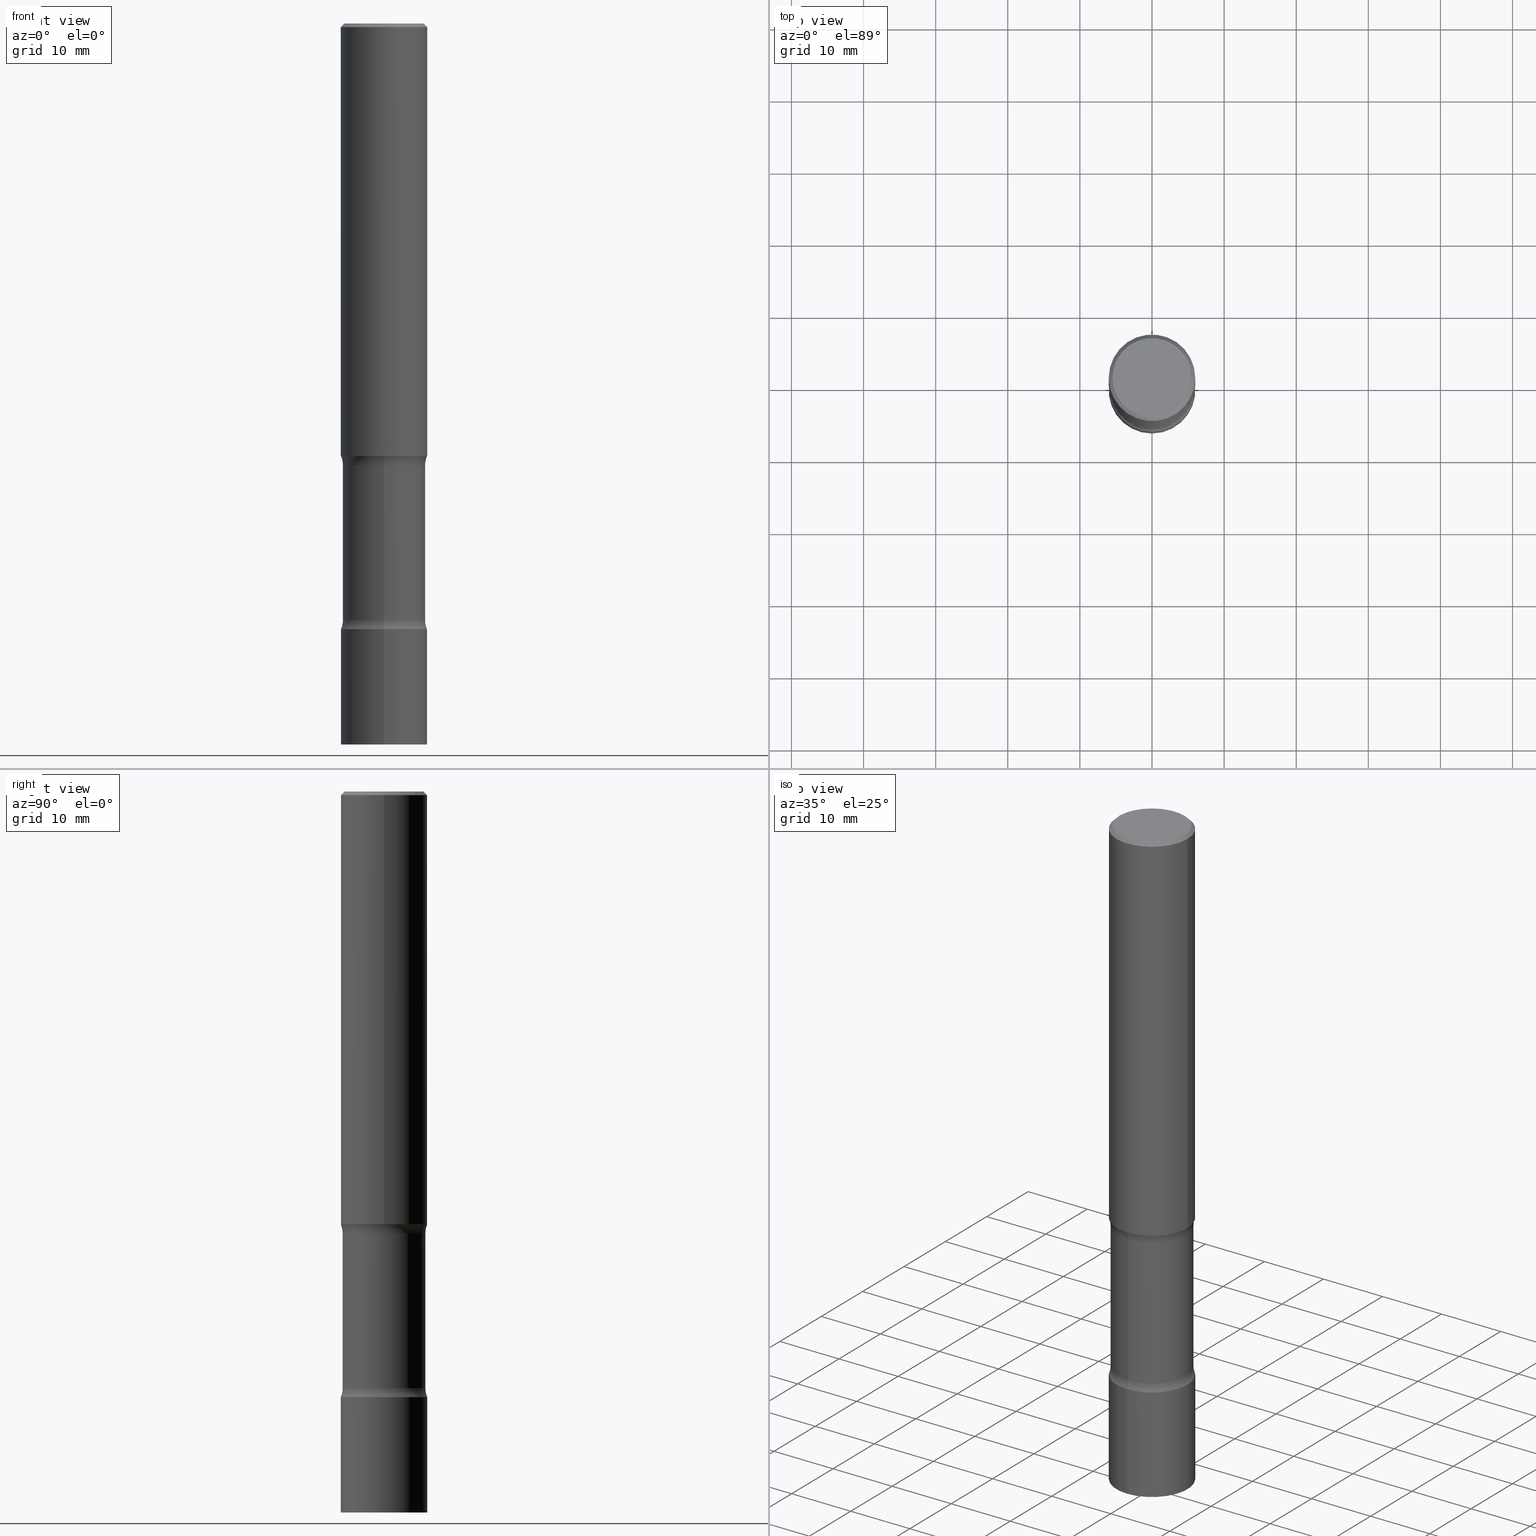
[diagram: canonical four-view strip — front | top / right | iso, engineering-drawing reading convention]
A machine part, canonical four-view strip (front | top / right | iso — engineering-drawing reading convention). The complete STEP part file that produces these views, byte-faithful:
ISO-10303-21;
HEADER;
FILE_DESCRIPTION (( 'STEP AP203' ),
    '1' );
FILE_NAME ('42709.STEP',
    '2024-03-11T13:32:30',
    ( '' ),
    ( '' ),
    'SwSTEP 2.0',
    'SolidWorks 2023',
    '' );
FILE_SCHEMA (( 'CONFIG_CONTROL_DESIGN' ));
ENDSEC;

DATA;
#1 = CARTESIAN_POINT ( 'NONE',  ( 7.966181769532970501E-29, -1.137359630996297633E-14, -3.257527452153435199 ) ) ;
#2 = DIRECTION ( 'NONE',  ( -6.982962677686265922E-15, -1.000000000000000000, 4.626330217890370914E-15 ) ) ;
#3 = EDGE_CURVE ( 'NONE', #478, #437, #290, .T. ) ;
#4 = CARTESIAN_POINT ( 'NONE',  ( 8.087666740795951310E-29, -1.154631010920399245E-14, -3.307100000000000151 ) ) ;
#5 = EDGE_CURVE ( 'NONE', #478, #52, #31, .T. ) ;
#6 = CLOSED_SHELL ( 'NONE', ( #213, #429, #136, #441 ) ) ;
#7 =( GEOMETRIC_REPRESENTATION_CONTEXT ( 3 ) GLOBAL_UNCERTAINTY_ASSIGNED_CONTEXT ( ( #302 ) ) GLOBAL_UNIT_ASSIGNED_CONTEXT ( ( #498, #449, #98 ) ) REPRESENTATION_CONTEXT ( 'NONE', 'WORKASPACE' ) );
#8 = ORIENTED_EDGE ( 'NONE', *, *, #179, .T. ) ;
#9 = EDGE_CURVE ( 'NONE', #437, #17, #140, .T. ) ;
#10 = EDGE_CURVE ( 'NONE', #253, #221, #82, .T. ) ;
#11 = CARTESIAN_POINT ( 'NONE',  ( 5.776686413970529753E-29, -8.247577218615278049E-15, -2.362199999999999633 ) ) ;
#12 = AXIS2_PLACEMENT_3D ( 'NONE', #164, #93, #316 ) ;
#13 = ORIENTED_EDGE ( 'NONE', *, *, #3, .T. ) ;
#14 = CC_DESIGN_SECURITY_CLASSIFICATION ( #178, ( #348 ) ) ;
#15 = DIRECTION ( 'NONE',  ( -2.445468806185136597E-29, 3.491481338843145583E-15, 1.000000000000000000 ) ) ;
#16 = EDGE_CURVE ( 'NONE', #502, #197, #209, .T. ) ;
#17 = VERTEX_POINT ( 'NONE', #22 ) ;
#18 = ORIENTED_EDGE ( 'NONE', *, *, #16, .F. ) ;
#19 = CARTESIAN_POINT ( 'NONE',  ( 8.087666740795951310E-29, -1.154631010920399245E-14, -3.307100000000000151 ) ) ;
#20 = CIRCLE ( 'NONE', #75, 0.2259500000000001785 ) ;
#21 = CARTESIAN_POINT ( 'NONE',  ( 0.2161999999999996980, -1.586759460484350016E-15, 4.268512490111238857E-18 ) ) ;
#22 = CARTESIAN_POINT ( 'NONE',  ( -1.620449627073580844E-15, -0.2362000000000086253, -2.362199999999998745 ) ) ;
#23 = DIRECTION ( 'NONE',  ( 1.000000000000000000, 0.000000000000000000, 0.000000000000000000 ) ) ;
#24 = PERSON ( 'UNSPECIFIED', 'UNSPECIFIED', 'UNSPECIFIED', ('UNSPECIFIED'), ('UNSPECIFIED'), ('UNSPECIFIED') ) ;
#25 = EDGE_CURVE ( 'NONE', #52, #294, #395, .T. ) ;
#26 = DIRECTION ( 'NONE',  ( 1.000000000000000000, -6.982962677686266711E-15, 4.876217060660162401E-29 ) ) ;
#27 = ADVANCED_FACE ( 'NONE', ( #267 ), #132, .F. ) ;
#28 = EDGE_LOOP ( 'NONE', ( #141, #318 ) ) ;
#29 = PERSON_AND_ORGANIZATION_ROLE ( 'creator' ) ;
#30 = DIRECTION ( 'NONE',  ( -2.445546472981146921E-29, 3.491370115570739041E-15, 1.000000000000000000 ) ) ;
#31 = LINE ( 'NONE', #453, #351 ) ;
#32 = FACE_OUTER_BOUND ( 'NONE', #28, .T. ) ;
#33 = CARTESIAN_POINT ( 'NONE',  ( 5.635572785636282470E-29, -8.449659966078857347E-15, -2.362199999999999633 ) ) ;
#34 = EDGE_CURVE ( 'NONE', #17, #437, #149, .T. ) ;
#35 = DATE_TIME_ROLE ( 'classification_date' ) ;
#36 = DIRECTION ( 'NONE',  ( -1.000000000000000000, 6.982962677686265922E-15, -4.876176775795935793E-29 ) ) ;
#37 = CARTESIAN_POINT ( 'NONE',  ( -1.585289574835001111E-15, -0.2259500000000087272, -2.411772547846564585 ) ) ;
#38 = DATE_AND_TIME ( #42, #391 ) ;
#39 = EDGE_CURVE ( 'NONE', #190, #227, #426, .T. ) ;
#40 = DIRECTION ( 'NONE',  ( 6.982962677686265922E-15, 1.000000000000000000, -2.418099573944909253E-15 ) ) ;
#41 = DIRECTION ( 'NONE',  ( 1.000000000000000000, -6.860497997771530774E-15, 4.843422759901110314E-29 ) ) ;
#42 = CALENDAR_DATE ( 2024, 11, 3 ) ;
#43 = CYLINDRICAL_SURFACE ( 'NONE', #369, 0.2361999999999999378 ) ;
#44 = CIRCLE ( 'NONE', #216, 0.2361999999999999378 ) ;
#45 = VECTOR ( 'NONE', #228, 39.37007874015748854 ) ;
#46 = DIRECTION ( 'NONE',  ( 2.595083030119239242E-29, -3.277225254656718769E-15, -1.000000000000000000 ) ) ;
#47 = PERSON_AND_ORGANIZATION ( #24, #87 ) ;
#48 = DIRECTION ( 'NONE',  ( -2.445546472981147201E-29, 3.491370115570739041E-15, 1.000000000000000000 ) ) ;
#49 = EDGE_CURVE ( 'NONE', #63, #478, #186, .T. ) ;
#50 = AXIS2_PLACEMENT_3D ( 'NONE', #11, #15, #476 ) ;
#51 = ADVANCED_BREP_SHAPE_REPRESENTATION ( '42709', ( #280, #279, #114, #116 ), #7 ) ;
#52 = VERTEX_POINT ( 'NONE', #470 ) ;
#53 = FACE_OUTER_BOUND ( 'NONE', #319, .T. ) ;
#54 = CC_DESIGN_DATE_AND_TIME_ASSIGNMENT ( #454, #289, ( #394 ) ) ;
#55 = ORIENTED_EDGE ( 'NONE', *, *, #165, .F. ) ;
#56 = DIRECTION ( 'NONE',  ( -2.445468806185136597E-29, 3.491481338843145583E-15, 1.000000000000000000 ) ) ;
#57 = AXIS2_PLACEMENT_3D ( 'NONE', #383, #418, #154 ) ;
#58 = EDGE_LOOP ( 'NONE', ( #328, #148 ) ) ;
#59 = ORIENTED_EDGE ( 'NONE', *, *, #150, .T. ) ;
#60 = PERSON_AND_ORGANIZATION ( #24, #87 ) ;
#61 = ORIENTED_EDGE ( 'NONE', *, *, #421, .T. ) ;
#62 = APPLICATION_PROTOCOL_DEFINITION ( 'international standard', 'config_control_design', 1994, #130 ) ;
#63 = VERTEX_POINT ( 'NONE', #37 ) ;
#64 = AXIS2_PLACEMENT_3D ( 'NONE', #422, #462, #341 ) ;
#65 = DIRECTION ( 'NONE',  ( -6.982962677686265922E-15, -1.000000000000000000, 4.626330217890370914E-15 ) ) ;
#66 = LOCAL_TIME ( 9, 32, 30.00000000000000000, #487 ) ;
#67 = ADVANCED_FACE ( 'NONE', ( #118 ), #467, .F. ) ;
#68 = DIRECTION ( 'NONE',  ( -1.000000000000000000, 6.982962677686266711E-15, 0.000000000000000000 ) ) ;
#69 = ORIENTED_EDGE ( 'NONE', *, *, #99, .T. ) ;
#70 = CARTESIAN_POINT ( 'NONE',  ( -0.2361999999999997157, 1.579546157692631255E-15, -0.02000000000000005246 ) ) ;
#71 = ORIENTED_EDGE ( 'NONE', *, *, #145, .F. ) ;
#72 = CYLINDRICAL_SURFACE ( 'NONE', #94, 0.2361999999999999378 ) ;
#73 = EDGE_CURVE ( 'NONE', #109, #284, #44, .T. ) ;
#74 = AXIS2_PLACEMENT_3D ( 'NONE', #100, #225, #378 ) ;
#75 = AXIS2_PLACEMENT_3D ( 'NONE', #120, #123, #399 ) ;
#76 = DIRECTION ( 'NONE',  ( -2.595083030119238121E-29, 3.277225254656719163E-15, 1.000000000000000000 ) ) ;
#77 = CC_DESIGN_PERSON_AND_ORGANIZATION_ASSIGNMENT ( #60, #185, ( #348 ) ) ;
#78 = PLANE ( 'NONE',  #396 ) ;
#79 = DIRECTION ( 'NONE',  ( -2.445468806185136877E-29, 3.491481338843145188E-15, 1.000000000000000000 ) ) ;
#80 = DIRECTION ( 'NONE',  ( -2.445468806185136597E-29, 3.491481338843145583E-15, 1.000000000000000000 ) ) ;
#81 = DIRECTION ( 'NONE',  ( -2.445468806185136597E-29, 3.491481338843145583E-15, 1.000000000000000000 ) ) ;
#82 = CIRCLE ( 'NONE', #346, 0.2361999999999999378 ) ;
#83 = CARTESIAN_POINT ( 'NONE',  ( 5.776686413970529753E-29, -8.247577218615278049E-15, -2.362199999999999633 ) ) ;
#84 = AXIS2_PLACEMENT_3D ( 'NONE', #192, #495, #68 ) ;
#85 = EDGE_CURVE ( 'NONE', #253, #52, #388, .T. ) ;
#86 = EDGE_CURVE ( 'NONE', #63, #294, #432, .T. ) ;
#87 = ORGANIZATION ( 'UNSPECIFIED', 'UNSPECIFIED', '' ) ;
#88 = APPROVAL_PERSON_ORGANIZATION ( #446, #472, #258 ) ;
#89 = ORIENTED_EDGE ( 'NONE', *, *, #179, .F. ) ;
#90 = FACE_OUTER_BOUND ( 'NONE', #58, .T. ) ;
#91 = CARTESIAN_POINT ( 'NONE',  ( 0.000000000000000000, 0.000000000000000000, 0.000000000000000000 ) ) ;
#92 = ORIENTED_EDGE ( 'NONE', *, *, #5, .F. ) ;
#93 = DIRECTION ( 'NONE',  ( -2.438088387897960049E-29, 3.491481338843145188E-15, 1.000000000000000000 ) ) ;
#94 = AXIS2_PLACEMENT_3D ( 'NONE', #423, #230, #379 ) ;
#95 = ORIENTED_EDGE ( 'NONE', *, *, #468, .F. ) ;
#96 = CALENDAR_DATE ( 2024, 11, 3 ) ;
#97 = ORIENTED_EDGE ( 'NONE', *, *, #127, .T. ) ;
#98 =( NAMED_UNIT ( * ) SI_UNIT ( $, .STERADIAN. ) SOLID_ANGLE_UNIT ( ) );
#99 = EDGE_CURVE ( 'NONE', #63, #17, #176, .T. ) ;
#100 = CARTESIAN_POINT ( 'NONE',  ( 2.450670751734053438E-15, 0.3509499999999914910, -2.411772547846566361 ) ) ;
#101 = CARTESIAN_POINT ( 'NONE',  ( 4.890937612370285420E-31, -6.982962677686308865E-17, -0.02000000000000005246 ) ) ;
#102 = CARTESIAN_POINT ( 'NONE',  ( 1.678301941865355803E-15, 0.2361999999999999378, -8.246616212978083012E-16 ) ) ;
#103 = CARTESIAN_POINT ( 'NONE',  ( 5.635572785636282470E-29, -8.449659966078857347E-15, -2.362199999999999633 ) ) ;
#104 = PERSON_AND_ORGANIZATION_ROLE ( 'creator' ) ;
#105 = AXIS2_PLACEMENT_3D ( 'NONE', #376, #466, #503 ) ;
#106 = PLANE ( 'NONE',  #126 ) ;
#107 = EDGE_LOOP ( 'NONE', ( #219, #200, #138, #89 ) ) ;
#108 = DIRECTION ( 'NONE',  ( 6.982962677686265922E-15, 1.000000000000000000, -3.627149360917364668E-15 ) ) ;
#109 = VERTEX_POINT ( 'NONE', #277 ) ;
#110 = COORDINATED_UNIVERSAL_TIME_OFFSET ( 5, 0, .BEHIND. ) ;
#111 = FACE_OUTER_BOUND ( 'NONE', #307, .T. ) ;
#112 = DIRECTION ( 'NONE',  ( 2.595083030119239242E-29, -3.277225254656718769E-15, -1.000000000000000000 ) ) ;
#113 = DATE_AND_TIME ( #169, #232 ) ;
#114 = MANIFOLD_SOLID_BREP ( 'Body-Move/Copy2[4]', #252 ) ;
#115 = CLOSED_SHELL ( 'NONE', ( #352, #377, #242, #255, #430, #122 ) ) ;
#116 = AXIS2_PLACEMENT_3D ( 'NONE', #335, #459, #23 ) ;
#117 = DIRECTION ( 'NONE',  ( 2.438088387897960049E-29, -3.491481338843145188E-15, -1.000000000000000000 ) ) ;
#118 = FACE_OUTER_BOUND ( 'NONE', #491, .T. ) ;
#119 = DIMENSIONAL_EXPONENTS ( 1.000000000000000000, 0.000000000000000000, 0.000000000000000000, 0.000000000000000000, 0.000000000000000000, 0.000000000000000000, 0.000000000000000000 ) ;
#120 = CARTESIAN_POINT ( 'NONE',  ( 7.959021863119556316E-29, -1.138384970346355123E-14, -3.257527452153435199 ) ) ;
#121 = FACE_OUTER_BOUND ( 'NONE', #409, .T. ) ;
#122 = ADVANCED_FACE ( 'NONE', ( #121 ), #473, .T. ) ;
#123 = DIRECTION ( 'NONE',  ( 2.595083030119239242E-29, -3.277225254656718769E-15, -1.000000000000000000 ) ) ;
#124 = CC_DESIGN_PERSON_AND_ORGANIZATION_ASSIGNMENT ( #367, #29, ( #394 ) ) ;
#125 = AXIS2_PLACEMENT_3D ( 'NONE', #157, #196, #201 ) ;
#126 = AXIS2_PLACEMENT_3D ( 'NONE', #199, #76, #272 ) ;
#127 = EDGE_CURVE ( 'NONE', #173, #227, #337, .T. ) ;
#128 = CC_DESIGN_PERSON_AND_ORGANIZATION_ASSIGNMENT ( #410, #152, ( #168 ) ) ;
#129 = EDGE_LOOP ( 'NONE', ( #440, #357, #488, #419 ) ) ;
#130 = APPLICATION_CONTEXT ( 'configuration controlled 3d designs of mechanical parts and assemblies' ) ;
#131 = FACE_OUTER_BOUND ( 'NONE', #129, .T. ) ;
#132 = TOROIDAL_SURFACE ( 'NONE', #480, 0.3509499999999999842, 0.1249999999999999029 ) ;
#133 = EDGE_LOOP ( 'NONE', ( #416, #69, #286, #301 ) ) ;
#134 = CYLINDRICAL_SURFACE ( 'NONE', #338, 0.2259500000000001507 ) ;
#135 = ORIENTED_EDGE ( 'NONE', *, *, #479, .F. ) ;
#136 = ADVANCED_FACE ( 'NONE', ( #457 ), #266, .F. ) ;
#137 = DIRECTION ( 'NONE',  ( 6.982962677686265922E-15, 1.000000000000000000, -3.277225254656718769E-15 ) ) ;
#138 = ORIENTED_EDGE ( 'NONE', *, *, #421, .F. ) ;
#139 = COORDINATED_UNIVERSAL_TIME_OFFSET ( 5, 0, .BEHIND. ) ;
#140 = CIRCLE ( 'NONE', #358, 0.2362000000000001598 ) ;
#141 = ORIENTED_EDGE ( 'NONE', *, *, #10, .T. ) ;
#142 = DATE_AND_TIME ( #96, #153 ) ;
#143 = ORIENTED_EDGE ( 'NONE', *, *, #323, .F. ) ;
#144 = CARTESIAN_POINT ( 'NONE',  ( -1.620449627073554812E-15, -0.2362000000000115396, -3.307099999999999707 ) ) ;
#145 = EDGE_CURVE ( 'NONE', #325, #281, #360, .T. ) ;
#146 = DIRECTION ( 'NONE',  ( 6.982962677686267499E-15, 1.000000000000000000, -2.418099573944909253E-15 ) ) ;
#147 = LINE ( 'NONE', #333, #45 ) ;
#148 = ORIENTED_EDGE ( 'NONE', *, *, #34, .F. ) ;
#149 = CIRCLE ( 'NONE', #270, 0.2362000000000001598 ) ;
#150 = EDGE_CURVE ( 'NONE', #325, #227, #147, .T. ) ;
#151 = AXIS2_PLACEMENT_3D ( 'NONE', #485, #385, #483 ) ;
#152 = PERSON_AND_ORGANIZATION_ROLE ( 'design_owner' ) ;
#153 = LOCAL_TIME ( 9, 32, 30.00000000000000000, #332 ) ;
#154 = DIRECTION ( 'NONE',  ( 6.982962677686265922E-15, 1.000000000000000000, -2.418099573944909253E-15 ) ) ;
#155 = ORIENTED_EDGE ( 'NONE', *, *, #435, .F. ) ;
#156 = CC_DESIGN_DATE_AND_TIME_ASSIGNMENT ( #38, #35, ( #178 ) ) ;
#157 = CARTESIAN_POINT ( 'NONE',  ( 4.890937612370285420E-31, -6.982962677686308865E-17, -0.02000000000000005246 ) ) ;
#158 = DIRECTION ( 'NONE',  ( 2.595083030119239242E-29, -3.277225254656718769E-15, -1.000000000000000000 ) ) ;
#159 = APPROVAL_ROLE ( '' ) ;
#160 = DIRECTION ( 'NONE',  ( 2.595083030119239242E-29, -3.277225254656718769E-15, -1.000000000000000000 ) ) ;
#161 = AXIS2_PLACEMENT_3D ( 'NONE', #506, #46, #166 ) ;
#162 = APPROVAL_PERSON_ORGANIZATION ( #375, #249, #191 ) ;
#163 = APPROVAL_PERSON_ORGANIZATION ( #315, #372, #159 ) ;
#164 = CARTESIAN_POINT ( 'NONE',  ( 5.776686413970529753E-29, -8.247577218615278049E-15, -2.362199999999999633 ) ) ;
#165 = EDGE_CURVE ( 'NONE', #478, #63, #283, .T. ) ;
#166 = DIRECTION ( 'NONE',  ( 6.982962677686265922E-15, 1.000000000000000000, -3.627149360917364668E-15 ) ) ;
#167 = PLANE ( 'NONE',  #172 ) ;
#168 = PRODUCT ( '42709', '42709', '', ( #363 ) ) ;
#169 = CALENDAR_DATE ( 2024, 11, 3 ) ;
#170 = DIRECTION ( 'NONE',  ( -6.982962677686265922E-15, -1.000000000000000000, 3.491370115570739041E-15 ) ) ;
#171 = APPLICATION_CONTEXT ( 'configuration controlled 3d designs of mechanical parts and assemblies' ) ;
#172 = AXIS2_PLACEMENT_3D ( 'NONE', #239, #400, #175 ) ;
#173 = VERTEX_POINT ( 'NONE', #501 ) ;
#174 = EDGE_LOOP ( 'NONE', ( #61, #458 ) ) ;
#175 = DIRECTION ( 'NONE',  ( 6.982962677686265922E-15, 1.000000000000000000, -3.491370115570739041E-15 ) ) ;
#176 = CIRCLE ( 'NONE', #455, 0.1250000000000000278 ) ;
#177 = AXIS2_PLACEMENT_3D ( 'NONE', #417, #494, #365 ) ;
#178 = SECURITY_CLASSIFICATION ( '', '', #313 ) ;
#179 = EDGE_CURVE ( 'NONE', #502, #284, #299, .T. ) ;
#180 = ORIENTED_EDGE ( 'NONE', *, *, #49, .T. ) ;
#181 = DIRECTION ( 'NONE',  ( -1.000000000000000000, 6.982962677686266711E-15, 0.000000000000000000 ) ) ;
#182 = ORIENTED_EDGE ( 'NONE', *, *, #490, .T. ) ;
#183 = APPLICATION_PROTOCOL_DEFINITION ( 'international standard', 'config_control_design', 1994, #171 ) ;
#184 = ORIENTED_EDGE ( 'NONE', *, *, #435, .T. ) ;
#185 = PERSON_AND_ORGANIZATION_ROLE ( 'design_supplier' ) ;
#186 = CIRCLE ( 'NONE', #161, 0.2259500000000001230 ) ;
#187 = ORIENTED_EDGE ( 'NONE', *, *, #86, .F. ) ;
#188 = CALENDAR_DATE ( 2024, 11, 3 ) ;
#189 = CARTESIAN_POINT ( 'NONE',  ( -1.043851414335219820E-46, 1.490343170380447200E-32, 4.268512490100411279E-18 ) ) ;
#190 = VERTEX_POINT ( 'NONE', #505 ) ;
#191 = APPROVAL_ROLE ( '' ) ;
#192 = CARTESIAN_POINT ( 'NONE',  ( 4.890937612370285420E-31, -6.982962677686308865E-17, -0.02000000000000005246 ) ) ;
#193 = ADVANCED_FACE ( 'NONE', ( #268 ), #492, .T. ) ;
#194 = DIRECTION ( 'NONE',  ( 2.595083030119239242E-29, -3.277225254656718769E-15, -1.000000000000000000 ) ) ;
#195 =( LENGTH_UNIT ( ) NAMED_UNIT ( * ) SI_UNIT ( $, .METRE. ) );
#196 = DIRECTION ( 'NONE',  ( -2.445468806185136597E-29, 3.491481338843145583E-15, 1.000000000000000000 ) ) ;
#197 = VERTEX_POINT ( 'NONE', #420 ) ;
#198 = CONICAL_SURFACE ( 'NONE', #84, 0.2361999999999997157, 0.7853981633974476129 ) ;
#199 = CARTESIAN_POINT ( 'NONE',  ( 8.087409888934865187E-29, -1.154667793568816723E-14, -3.307100000000000151 ) ) ;
#200 = ORIENTED_EDGE ( 'NONE', *, *, #275, .T. ) ;
#201 = DIRECTION ( 'NONE',  ( 1.000000000000000000, -6.982962677686266711E-15, 0.000000000000000000 ) ) ;
#202 = DIRECTION ( 'NONE',  ( -2.445546472981147201E-29, 3.491370115570739041E-15, 1.000000000000000000 ) ) ;
#203 = CARTESIAN_POINT ( 'NONE',  ( 1.577800417023270494E-15, 0.2259499999999915187, -2.411772547846566361 ) ) ;
#204 = CARTESIAN_POINT ( 'NONE',  ( 2.450670751734074343E-15, 0.3509499999999885489, -3.257527452153436531 ) ) ;
#205 = CIRCLE ( 'NONE', #477, 0.2161999999999996980 ) ;
#206 = FACE_OUTER_BOUND ( 'NONE', #256, .T. ) ;
#207 = CARTESIAN_POINT ( 'NONE',  ( 0.000000000000000000, 0.000000000000000000, 0.000000000000000000 ) ) ;
#208 = ADVANCED_FACE ( 'NONE', ( #463 ), #508, .F. ) ;
#209 = CIRCLE ( 'NONE', #64, 0.2361999999999999378 ) ;
#210 = VECTOR ( 'NONE', #439, 39.37007874015748143 ) ;
#211 = EDGE_LOOP ( 'NONE', ( #292, #364, #8, #297 ) ) ;
#212 = CARTESIAN_POINT ( 'NONE',  ( 5.754841589015903426E-29, -8.625547443865291011E-15, -2.411772547846565473 ) ) ;
#213 = ADVANCED_FACE ( 'NONE', ( #461 ), #72, .T. ) ;
#214 = EDGE_LOOP ( 'NONE', ( #486, #448, #497, #257 ) ) ;
#215 = DIRECTION ( 'NONE',  ( 2.595083030119239242E-29, -3.277225254656718769E-15, -1.000000000000000000 ) ) ;
#216 = AXIS2_PLACEMENT_3D ( 'NONE', #384, #202, #343 ) ;
#217 = ADVANCED_FACE ( 'NONE', ( #32 ), #106, .F. ) ;
#218 = AXIS2_PLACEMENT_3D ( 'NONE', #327, #293, #65 ) ;
#219 = ORIENTED_EDGE ( 'NONE', *, *, #16, .T. ) ;
#220 = ORIENTED_EDGE ( 'NONE', *, *, #150, .F. ) ;
#221 = VERTEX_POINT ( 'NONE', #144 ) ;
#222 = PRODUCT_RELATED_PRODUCT_CATEGORY ( 'detail', '', ( #168 ) ) ;
#223 = APPROVAL_STATUS ( 'not_yet_approved' ) ;
#224 = CC_DESIGN_APPROVAL ( #249, ( #394 ) ) ;
#225 = DIRECTION ( 'NONE',  ( -1.000000000000000000, 6.982962677686265922E-15, -4.883557194083112901E-29 ) ) ;
#226 = CARTESIAN_POINT ( 'NONE',  ( -1.043851414335219820E-46, 1.490343170380447200E-32, 4.268512490100411279E-18 ) ) ;
#227 = VERTEX_POINT ( 'NONE', #70 ) ;
#228 = DIRECTION ( 'NONE',  ( -0.7071067811865469066, 2.468850131082251144E-15, -0.7071067811865479058 ) ) ;
#229 = ORIENTED_EDGE ( 'NONE', *, *, #25, .F. ) ;
#230 = DIRECTION ( 'NONE',  ( -2.445546472981147201E-29, 3.491370115570739041E-15, 1.000000000000000000 ) ) ;
#231 = ORIENTED_EDGE ( 'NONE', *, *, #329, .F. ) ;
#232 = LOCAL_TIME ( 9, 32, 30.00000000000000000, #110 ) ;
#233 = DIRECTION ( 'NONE',  ( -2.445468806185136597E-29, 3.491481338843145583E-15, 1.000000000000000000 ) ) ;
#234 = DIRECTION ( 'NONE',  ( 6.982962677686265922E-15, 1.000000000000000000, -3.277225254656718769E-15 ) ) ;
#235 = PERSON_AND_ORGANIZATION_ROLE ( 'classification_officer' ) ;
#236 = DIRECTION ( 'NONE',  ( -2.445546472981146921E-29, 3.491370115570739041E-15, 1.000000000000000000 ) ) ;
#237 = DIRECTION ( 'NONE',  ( 2.595083030119239242E-29, -3.277225254656719163E-15, -1.000000000000000000 ) ) ;
#238 = APPROVAL_DATE_TIME ( #113, #372 ) ;
#239 = CARTESIAN_POINT ( 'NONE',  ( 9.627810689950883669E-29, -1.374596203102546341E-14, -3.937000000000000277 ) ) ;
#240 = DIRECTION ( 'NONE',  ( 1.000000000000000000, -6.982962677686266711E-15, 4.876176775795935793E-29 ) ) ;
#241 = CIRCLE ( 'NONE', #300, 0.2361999999999997157 ) ;
#242 = ADVANCED_FACE ( 'NONE', ( #111 ), #198, .T. ) ;
#243 = CYLINDRICAL_SURFACE ( 'NONE', #456, 0.2361999999999998545 ) ;
#244 = AXIS2_PLACEMENT_3D ( 'NONE', #1, #160, #234 ) ;
#245 = ORIENTED_EDGE ( 'NONE', *, *, #165, .T. ) ;
#246 = DIRECTION ( 'NONE',  ( 1.000000000000000000, -6.982962677686269077E-15, 0.000000000000000000 ) ) ;
#247 = ORIENTED_EDGE ( 'NONE', *, *, #5, .T. ) ;
#248 = CARTESIAN_POINT ( 'NONE',  ( 1.649375784469553915E-15, 0.2361999999999917776, -2.362200000000000522 ) ) ;
#249 = APPROVAL ( #223, 'UNSPECIFIED' ) ;
#250 = EDGE_LOOP ( 'NONE', ( #187, #180, #247, #231 ) ) ;
#251 = APPROVAL_DATE_TIME ( #404, #249 ) ;
#252 = CLOSED_SHELL ( 'NONE', ( #475, #67, #408, #208, #460, #217, #27, #193 ) ) ;
#253 = VERTEX_POINT ( 'NONE', #296 ) ;
#254 = DIRECTION ( 'NONE',  ( 1.000000000000000000, -6.982962677686266711E-15, 0.000000000000000000 ) ) ;
#255 = ADVANCED_FACE ( 'NONE', ( #340 ), #78, .F. ) ;
#256 = EDGE_LOOP ( 'NONE', ( #95, #155 ) ) ;
#257 = ORIENTED_EDGE ( 'NONE', *, *, #25, .T. ) ;
#258 = APPROVAL_ROLE ( '' ) ;
#259 = CARTESIAN_POINT ( 'NONE',  ( -1.649375784469414681E-15, -0.2362000000000114841, -3.307099999999999262 ) ) ;
#260 = AXIS2_PLACEMENT_3D ( 'NONE', #204, #310, #274 ) ;
#261 = VECTOR ( 'NONE', #79, 39.37007874015748143 ) ;
#262 = AXIS2_PLACEMENT_3D ( 'NONE', #330, #336, #108 ) ;
#263 = ORIENTED_EDGE ( 'NONE', *, *, #39, .F. ) ;
#264 = DIRECTION ( 'NONE',  ( 1.000000000000000000, -6.982962677686266711E-15, 4.876217060660162401E-29 ) ) ;
#265 = ORIENTED_EDGE ( 'NONE', *, *, #329, .T. ) ;
#266 = PLANE ( 'NONE',  #105 ) ;
#267 = FACE_OUTER_BOUND ( 'NONE', #214, .T. ) ;
#268 = FACE_OUTER_BOUND ( 'NONE', #250, .T. ) ;
#269 = DIRECTION ( 'NONE',  ( 6.982962677686265922E-15, 1.000000000000000000, -3.469747663417774636E-15 ) ) ;
#270 = AXIS2_PLACEMENT_3D ( 'NONE', #33, #112, #269 ) ;
#271 = SHAPE_DEFINITION_REPRESENTATION ( #413, #51 ) ;
#272 = DIRECTION ( 'NONE',  ( -6.982962677686265922E-15, -1.000000000000000000, 3.277225254656719163E-15 ) ) ;
#273 = CC_DESIGN_PERSON_AND_ORGANIZATION_ASSIGNMENT ( #407, #104, ( #348 ) ) ;
#274 = DIRECTION ( 'NONE',  ( -6.982962677686264344E-15, -1.000000000000000000, 0.000000000000000000 ) ) ;
#275 = EDGE_CURVE ( 'NONE', #197, #109, #427, .T. ) ;
#276 = FACE_OUTER_BOUND ( 'NONE', #133, .T. ) ;
#277 = CARTESIAN_POINT ( 'NONE',  ( 1.678301941865452241E-15, 0.2361999999999883915, -3.307100000000001483 ) ) ;
#278 = FACE_OUTER_BOUND ( 'NONE', #362, .T. ) ;
#279 = MANIFOLD_SOLID_BREP ( 'Body-Move/Copy2[2]', #115 ) ;
#280 = MANIFOLD_SOLID_BREP ( 'Body-Move/Copy2[1]', #6 ) ;
#281 = VERTEX_POINT ( 'NONE', #21 ) ;
#282 = CARTESIAN_POINT ( 'NONE',  ( 0.2361999999999998545, -1.649375784469495145E-15, 1.151752954442999387E-29 ) ) ;
#283 = CIRCLE ( 'NONE', #262, 0.2259500000000001230 ) ;
#284 = VERTEX_POINT ( 'NONE', #259 ) ;
#285 = CARTESIAN_POINT ( 'NONE',  ( 0.2361999999999997157, -1.690279253850496996E-15, -0.02000000000000005246 ) ) ;
#286 = ORIENTED_EDGE ( 'NONE', *, *, #34, .T. ) ;
#287 = CARTESIAN_POINT ( 'NONE',  ( 9.722309541468059850E-29, -1.361063429711225876E-14, -3.937000000000000277 ) ) ;
#288 = EDGE_LOOP ( 'NONE', ( #143, #366, #97, #220 ) ) ;
#289 = DATE_TIME_ROLE ( 'creation_date' ) ;
#290 = CIRCLE ( 'NONE', #74, 0.1250000000000000278 ) ;
#291 = VECTOR ( 'NONE', #236, 39.37007874015748143 ) ;
#292 = ORIENTED_EDGE ( 'NONE', *, *, #275, .F. ) ;
#293 = DIRECTION ( 'NONE',  ( -2.445546472981147201E-29, 3.491370115570739041E-15, 1.000000000000000000 ) ) ;
#294 = VERTEX_POINT ( 'NONE', #415 ) ;
#295 = APPROVAL_STATUS ( 'not_yet_approved' ) ;
#296 = CARTESIAN_POINT ( 'NONE',  ( 1.649375784469576792E-15, 0.2361999999999884192, -3.307100000000001039 ) ) ;
#297 = ORIENTED_EDGE ( 'NONE', *, *, #73, .F. ) ;
#298 = APPROVAL_DATE_TIME ( #142, #472 ) ;
#299 = LINE ( 'NONE', #342, #321 ) ;
#300 = AXIS2_PLACEMENT_3D ( 'NONE', #101, #412, #254 ) ;
#301 = ORIENTED_EDGE ( 'NONE', *, *, #3, .F. ) ;
#302 = UNCERTAINTY_MEASURE_WITH_UNIT (LENGTH_MEASURE( 1.000000000000000082E-05 ), #498, 'distance_accuracy_value', 'NONE');
#303 = CALENDAR_DATE ( 2024, 11, 3 ) ;
#304 = DIRECTION ( 'NONE',  ( 2.595083030119239242E-29, -3.277225254656718769E-15, -1.000000000000000000 ) ) ;
#305 = DIRECTION ( 'NONE',  ( 2.595083030119239242E-29, -3.277225254656718769E-15, -1.000000000000000000 ) ) ;
#306 = CARTESIAN_POINT ( 'NONE',  ( 5.754841589015903426E-29, -8.625547443865291011E-15, -2.411772547846565473 ) ) ;
#307 = EDGE_LOOP ( 'NONE', ( #443, #71, #59, #182 ) ) ;
#308 = CC_DESIGN_PERSON_AND_ORGANIZATION_ASSIGNMENT ( #47, #235, ( #178 ) ) ;
#309 = DIRECTION ( 'NONE',  ( 6.982962677686265922E-15, 1.000000000000000000, -3.277225254656718769E-15 ) ) ;
#310 = DIRECTION ( 'NONE',  ( -1.000000000000000000, 6.982962677686265922E-15, -4.883557194083112901E-29 ) ) ;
#311 = DIRECTION ( 'NONE',  ( 0.7071067811865469066, -7.319954787623252890E-15, -0.7071067811865479058 ) ) ;
#312 = CARTESIAN_POINT ( 'NONE',  ( 0.000000000000000000, 0.000000000000000000, 0.000000000000000000 ) ) ;
#313 = SECURITY_CLASSIFICATION_LEVEL ( 'unclassified' ) ;
#314 = DIRECTION ( 'NONE',  ( -2.445546472981147201E-29, 3.491370115570739041E-15, 1.000000000000000000 ) ) ;
#315 = PERSON_AND_ORGANIZATION ( #24, #87 ) ;
#316 = DIRECTION ( 'NONE',  ( 1.000000000000000000, -6.982962677686265922E-15, 4.876176775795935793E-29 ) ) ;
#317 = AXIS2_PLACEMENT_3D ( 'NONE', #306, #304, #309 ) ;
#318 = ORIENTED_EDGE ( 'NONE', *, *, #401, .T. ) ;
#319 = EDGE_LOOP ( 'NONE', ( #245, #354, #229, #92 ) ) ;
#320 = CARTESIAN_POINT ( 'NONE',  ( 8.087666740795951310E-29, -1.154631010920399245E-14, -3.307100000000000151 ) ) ;
#321 = VECTOR ( 'NONE', #30, 39.37007874015748143 ) ;
#322 = AXIS2_PLACEMENT_3D ( 'NONE', #4, #393, #433 ) ;
#323 = EDGE_CURVE ( 'NONE', #281, #325, #205, .T. ) ;
#324 = ORIENTED_EDGE ( 'NONE', *, *, #99, .F. ) ;
#325 = VERTEX_POINT ( 'NONE', #349 ) ;
#326 = DESIGN_CONTEXT ( 'detailed design', #130, 'design' ) ;
#327 = CARTESIAN_POINT ( 'NONE',  ( 9.628116464126776424E-29, -1.374552414500199917E-14, -3.937000000000000277 ) ) ;
#328 = ORIENTED_EDGE ( 'NONE', *, *, #9, .F. ) ;
#329 = EDGE_CURVE ( 'NONE', #294, #52, #20, .T. ) ;
#330 = CARTESIAN_POINT ( 'NONE',  ( 5.764217663312678584E-29, -8.612120371819300146E-15, -2.411772547846565473 ) ) ;
#331 = EDGE_LOOP ( 'NONE', ( #324, #55, #13, #450 ) ) ;
#332 = COORDINATED_UNIVERSAL_TIME_OFFSET ( 5, 0, .BEHIND. ) ;
#333 = CARTESIAN_POINT ( 'NONE',  ( -0.2361999999999997157, 1.579546157692631255E-15, -0.02000000000000005246 ) ) ;
#334 = VERTEX_POINT ( 'NONE', #431 ) ;
#335 = CARTESIAN_POINT ( 'NONE',  ( 0.000000000000000000, 0.000000000000000000, 0.000000000000000000 ) ) ;
#336 = DIRECTION ( 'NONE',  ( 2.595083030119239242E-29, -3.277225254656718769E-15, -1.000000000000000000 ) ) ;
#337 = CIRCLE ( 'NONE', #125, 0.2361999999999997157 ) ;
#338 = AXIS2_PLACEMENT_3D ( 'NONE', #287, #215, #40 ) ;
#339 = DIRECTION ( 'NONE',  ( 6.982962677686265922E-15, 1.000000000000000000, -3.469747663417774636E-15 ) ) ;
#340 = FACE_OUTER_BOUND ( 'NONE', #382, .T. ) ;
#341 = DIRECTION ( 'NONE',  ( -6.982962677686265922E-15, -1.000000000000000000, 4.626330217890370914E-15 ) ) ;
#342 = CARTESIAN_POINT ( 'NONE',  ( -1.649375784469495539E-15, -0.2361999999999999378, 8.246616212978083012E-16 ) ) ;
#343 = DIRECTION ( 'NONE',  ( -6.982962677686265922E-15, -1.000000000000000000, 4.626330217890370914E-15 ) ) ;
#344 = FACE_OUTER_BOUND ( 'NONE', #288, .T. ) ;
#345 = DIRECTION ( 'NONE',  ( 6.860497997771532351E-15, 1.000000000000000000, 0.000000000000000000 ) ) ;
#346 = AXIS2_PLACEMENT_3D ( 'NONE', #19, #305, #411 ) ;
#347 = VECTOR ( 'NONE', #311, 39.37007874015748854 ) ;
#348 = PRODUCT_DEFINITION_FORMATION_WITH_SPECIFIED_SOURCE ( 'ANY', '', #168, .NOT_KNOWN. ) ;
#349 = CARTESIAN_POINT ( 'NONE',  ( -0.2161999999999996980, 1.544631344304200000E-15, 4.268512490089730842E-18 ) ) ;
#350 = DIRECTION ( 'NONE',  ( 1.000000000000000000, -6.982962677686266711E-15, 4.876176775795935793E-29 ) ) ;
#351 = VECTOR ( 'NONE', #370, 39.37007874015748143 ) ;
#352 = ADVANCED_FACE ( 'NONE', ( #131 ), #243, .T. ) ;
#353 = AXIS2_PLACEMENT_3D ( 'NONE', #189, #233, #264 ) ;
#354 = ORIENTED_EDGE ( 'NONE', *, *, #86, .T. ) ;
#355 = ORIENTED_EDGE ( 'NONE', *, *, #436, .T. ) ;
#356 = FACE_OUTER_BOUND ( 'NONE', #211, .T. ) ;
#357 = ORIENTED_EDGE ( 'NONE', *, *, #39, .T. ) ;
#358 = AXIS2_PLACEMENT_3D ( 'NONE', #103, #374, #339 ) ;
#359 = PLANE ( 'NONE',  #12 ) ;
#360 = CIRCLE ( 'NONE', #353, 0.2161999999999996980 ) ;
#361 = EDGE_CURVE ( 'NONE', #281, #173, #442, .T. ) ;
#362 = EDGE_LOOP ( 'NONE', ( #18, #135 ) ) ;
#363 = MECHANICAL_CONTEXT ( 'NONE', #171, 'mechanical' ) ;
#364 = ORIENTED_EDGE ( 'NONE', *, *, #479, .T. ) ;
#365 = DIRECTION ( 'NONE',  ( 6.860497997771531562E-15, 1.000000000000000000, 0.000000000000000000 ) ) ;
#366 = ORIENTED_EDGE ( 'NONE', *, *, #361, .T. ) ;
#367 = PERSON_AND_ORGANIZATION ( #24, #87 ) ;
#368 = AXIS2_PLACEMENT_3D ( 'NONE', #493, #194, #146 ) ;
#369 = AXIS2_PLACEMENT_3D ( 'NONE', #91, #48, #170 ) ;
#370 = DIRECTION ( 'NONE',  ( 2.595083030119239242E-29, -3.277225254656719163E-15, -1.000000000000000000 ) ) ;
#371 = LENGTH_MEASURE_WITH_UNIT ( LENGTH_MEASURE( 0.02539999999999999897 ), #195 );
#372 = APPROVAL ( #465, 'UNSPECIFIED' ) ;
#373 = DIRECTION ( 'NONE',  ( -2.445468806185136597E-29, 3.491481338843145583E-15, 1.000000000000000000 ) ) ;
#374 = DIRECTION ( 'NONE',  ( 2.595083030119239242E-29, -3.277225254656718769E-15, -1.000000000000000000 ) ) ;
#375 = PERSON_AND_ORGANIZATION ( #24, #87 ) ;
#376 = CARTESIAN_POINT ( 'NONE',  ( 8.087409888934865187E-29, -1.154667793568816723E-14, -3.307100000000000151 ) ) ;
#377 = ADVANCED_FACE ( 'NONE', ( #344 ), #482, .T. ) ;
#378 = DIRECTION ( 'NONE',  ( -6.982962677686267499E-15, -1.000000000000000000, 0.000000000000000000 ) ) ;
#379 = DIRECTION ( 'NONE',  ( -6.982962677686265922E-15, -1.000000000000000000, 3.491370115570739041E-15 ) ) ;
#380 = TOROIDAL_SURFACE ( 'NONE', #469, 0.3509500000000000952, 0.1250000000000000555 ) ;
#381 = LOCAL_TIME ( 9, 32, 30.00000000000000000, #139 ) ;
#382 = EDGE_LOOP ( 'NONE', ( #406, #484 ) ) ;
#383 = CARTESIAN_POINT ( 'NONE',  ( 9.722309541468059850E-29, -1.361063429711225876E-14, -3.937000000000000277 ) ) ;
#384 = CARTESIAN_POINT ( 'NONE',  ( 8.087666740795951310E-29, -1.154631010920399245E-14, -3.307100000000000151 ) ) ;
#385 = DIRECTION ( 'NONE',  ( 2.595083030119238121E-29, -3.277225254656719163E-15, -1.000000000000000000 ) ) ;
#386 = CARTESIAN_POINT ( 'NONE',  ( -2.407691772317861837E-15, -0.3509500000000086994, -2.411772547846564141 ) ) ;
#387 = PLANE ( 'NONE',  #151 ) ;
#388 = CIRCLE ( 'NONE', #260, 0.1249999999999999029 ) ;
#389 = CARTESIAN_POINT ( 'NONE',  ( -0.2361999999999998545, 1.678301941865355605E-15, -1.161852468318208056E-29 ) ) ;
#390 = AXIS2_PLACEMENT_3D ( 'NONE', #320, #314, #2 ) ;
#391 = LOCAL_TIME ( 9, 32, 30.00000000000000000, #392 ) ;
#392 = COORDINATED_UNIVERSAL_TIME_OFFSET ( 5, 0, .BEHIND. ) ;
#393 = DIRECTION ( 'NONE',  ( 2.595083030119239242E-29, -3.277225254656718769E-15, -1.000000000000000000 ) ) ;
#394 = PRODUCT_DEFINITION ( 'UNKNOWN', '', #348, #326 ) ;
#395 = CIRCLE ( 'NONE', #368, 0.2259500000000001785 ) ;
#396 = AXIS2_PLACEMENT_3D ( 'NONE', #452, #117, #36 ) ;
#397 = CC_DESIGN_APPROVAL ( #472, ( #348 ) ) ;
#398 = ORIENTED_EDGE ( 'NONE', *, *, #401, .F. ) ;
#399 = DIRECTION ( 'NONE',  ( 6.982962677686267499E-15, 1.000000000000000000, -2.418099573944909253E-15 ) ) ;
#400 = DIRECTION ( 'NONE',  ( 2.445546472981146641E-29, -3.491370115570739041E-15, -1.000000000000000000 ) ) ;
#401 = EDGE_CURVE ( 'NONE', #221, #253, #434, .T. ) ;
#402 = ORIENTED_EDGE ( 'NONE', *, *, #490, .F. ) ;
#403 = AXIS2_PLACEMENT_3D ( 'NONE', #312, #81, #240 ) ;
#404 = DATE_AND_TIME ( #303, #66 ) ;
#405 = CIRCLE ( 'NONE', #489, 0.2361999999999999933 ) ;
#406 = ORIENTED_EDGE ( 'NONE', *, *, #145, .T. ) ;
#407 = PERSON_AND_ORGANIZATION ( #24, #87 ) ;
#408 = ADVANCED_FACE ( 'NONE', ( #276 ), #380, .F. ) ;
#409 = EDGE_LOOP ( 'NONE', ( #263, #184, #355, #402 ) ) ;
#410 = PERSON_AND_ORGANIZATION ( #24, #87 ) ;
#411 = DIRECTION ( 'NONE',  ( 6.982962677686265922E-15, 1.000000000000000000, -2.313165108945185457E-15 ) ) ;
#412 = DIRECTION ( 'NONE',  ( -2.445468806185136597E-29, 3.491481338843145583E-15, 1.000000000000000000 ) ) ;
#413 = PRODUCT_DEFINITION_SHAPE ( 'NONE', 'NONE',  #394 ) ;
#414 = CIRCLE ( 'NONE', #390, 0.2361999999999999378 ) ;
#415 = CARTESIAN_POINT ( 'NONE',  ( -1.585289574834976853E-15, -0.2259500000000115305, -3.257527452153434755 ) ) ;
#416 = ORIENTED_EDGE ( 'NONE', *, *, #49, .F. ) ;
#417 = CARTESIAN_POINT ( 'NONE',  ( -2.407691772317839354E-15, -0.3509500000000113640, -3.257527452153434311 ) ) ;
#418 = DIRECTION ( 'NONE',  ( 2.595083030119239242E-29, -3.277225254656718769E-15, -1.000000000000000000 ) ) ;
#419 = ORIENTED_EDGE ( 'NONE', *, *, #436, .F. ) ;
#420 = CARTESIAN_POINT ( 'NONE',  ( 1.678301941865444352E-15, 0.2361999999999861710, -3.937000000000001165 ) ) ;
#421 = EDGE_CURVE ( 'NONE', #284, #109, #414, .T. ) ;
#422 = CARTESIAN_POINT ( 'NONE',  ( 9.628116464126776424E-29, -1.374552414500199917E-14, -3.937000000000000277 ) ) ;
#423 = CARTESIAN_POINT ( 'NONE',  ( 0.000000000000000000, 0.000000000000000000, 0.000000000000000000 ) ) ;
#424 = AXIS2_PLACEMENT_3D ( 'NONE', #474, #471, #181 ) ;
#425 = CC_DESIGN_APPROVAL ( #372, ( #178 ) ) ;
#426 = LINE ( 'NONE', #389, #261 ) ;
#427 = LINE ( 'NONE', #102, #291 ) ;
#428 = CARTESIAN_POINT ( 'NONE',  ( -1.550129522596381145E-15, -0.2259500000000137787, -3.936999999999999389 ) ) ;
#429 = ADVANCED_FACE ( 'NONE', ( #356 ), #43, .T. ) ;
#430 = ADVANCED_FACE ( 'NONE', ( #206 ), #359, .F. ) ;
#431 = CARTESIAN_POINT ( 'NONE',  ( 0.2361999999999999933, -9.896953003084774574E-15, -2.362199999999999633 ) ) ;
#432 = LINE ( 'NONE', #428, #499 ) ;
#433 = DIRECTION ( 'NONE',  ( 6.982962677686265922E-15, 1.000000000000000000, -2.313165108945185457E-15 ) ) ;
#434 = CIRCLE ( 'NONE', #322, 0.2361999999999999378 ) ;
#435 = EDGE_CURVE ( 'NONE', #190, #334, #438, .T. ) ;
#436 = EDGE_CURVE ( 'NONE', #334, #173, #444, .T. ) ;
#437 = VERTEX_POINT ( 'NONE', #248 ) ;
#438 = CIRCLE ( 'NONE', #50, 0.2361999999999999933 ) ;
#439 = DIRECTION ( 'NONE',  ( -2.445468806185136877E-29, 3.491481338843145188E-15, 1.000000000000000000 ) ) ;
#440 = ORIENTED_EDGE ( 'NONE', *, *, #468, .T. ) ;
#441 = ADVANCED_FACE ( 'NONE', ( #278 ), #167, .T. ) ;
#442 = LINE ( 'NONE', #285, #347 ) ;
#443 = ORIENTED_EDGE ( 'NONE', *, *, #361, .F. ) ;
#444 = LINE ( 'NONE', #282, #210 ) ;
#445 = ORIENTED_EDGE ( 'NONE', *, *, #496, .T. ) ;
#446 = PERSON_AND_ORGANIZATION ( #24, #87 ) ;
#447 = CIRCLE ( 'NONE', #218, 0.2361999999999999378 ) ;
#448 = ORIENTED_EDGE ( 'NONE', *, *, #10, .F. ) ;
#449 =( NAMED_UNIT ( * ) PLANE_ANGLE_UNIT ( ) SI_UNIT ( $, .RADIAN. ) );
#450 = ORIENTED_EDGE ( 'NONE', *, *, #9, .T. ) ;
#451 = CARTESIAN_POINT ( 'NONE',  ( -1.649375784469399101E-15, -0.2362000000000136768, -3.936999999999998945 ) ) ;
#452 = CARTESIAN_POINT ( 'NONE',  ( 1.509716530915768548E-15, 0.2161999999999996980, -7.527240092128368218E-16 ) ) ;
#453 = CARTESIAN_POINT ( 'NONE',  ( 1.577800417023310331E-15, 0.2259499999999865227, -3.937000000000000721 ) ) ;
#454 = DATE_AND_TIME ( #188, #381 ) ;
#455 = AXIS2_PLACEMENT_3D ( 'NONE', #386, #41, #345 ) ;
#456 = AXIS2_PLACEMENT_3D ( 'NONE', #207, #80, #350 ) ;
#457 = FACE_OUTER_BOUND ( 'NONE', #174, .T. ) ;
#458 = ORIENTED_EDGE ( 'NONE', *, *, #73, .T. ) ;
#459 = DIRECTION ( 'NONE',  ( 0.000000000000000000, 0.000000000000000000, 1.000000000000000000 ) ) ;
#460 = ADVANCED_FACE ( 'NONE', ( #90 ), #387, .F. ) ;
#461 = FACE_OUTER_BOUND ( 'NONE', #107, .T. ) ;
#462 = DIRECTION ( 'NONE',  ( -2.445546472981147201E-29, 3.491370115570739041E-15, 1.000000000000000000 ) ) ;
#463 = FACE_OUTER_BOUND ( 'NONE', #331, .T. ) ;
#464 = DIRECTION ( 'NONE',  ( 6.982962677686265922E-15, 1.000000000000000000, -3.277225254656718769E-15 ) ) ;
#465 = APPROVAL_STATUS ( 'not_yet_approved' ) ;
#466 = DIRECTION ( 'NONE',  ( 2.445546472981146641E-29, -3.491370115570739041E-15, -1.000000000000000000 ) ) ;
#467 = TOROIDAL_SURFACE ( 'NONE', #244, 0.3509499999999999842, 0.1249999999999999029 ) ;
#468 = EDGE_CURVE ( 'NONE', #334, #190, #405, .T. ) ;
#469 = AXIS2_PLACEMENT_3D ( 'NONE', #212, #507, #137 ) ;
#470 = CARTESIAN_POINT ( 'NONE',  ( 1.577800417023292779E-15, 0.2259499999999888264, -3.257527452153435643 ) ) ;
#471 = DIRECTION ( 'NONE',  ( 2.445468806185136597E-29, -3.491481338843145583E-15, -1.000000000000000000 ) ) ;
#472 = APPROVAL ( #295, 'UNSPECIFIED' ) ;
#473 = CYLINDRICAL_SURFACE ( 'NONE', #403, 0.2361999999999998545 ) ;
#474 = CARTESIAN_POINT ( 'NONE',  ( 4.890937612370285420E-31, -6.982962677686308865E-17, -0.02000000000000005246 ) ) ;
#475 = ADVANCED_FACE ( 'NONE', ( #53 ), #134, .T. ) ;
#476 = DIRECTION ( 'NONE',  ( 1.000000000000000000, -6.982962677686269077E-15, 0.000000000000000000 ) ) ;
#477 = AXIS2_PLACEMENT_3D ( 'NONE', #226, #373, #26 ) ;
#478 = VERTEX_POINT ( 'NONE', #203 ) ;
#479 = EDGE_CURVE ( 'NONE', #197, #502, #447, .T. ) ;
#480 = AXIS2_PLACEMENT_3D ( 'NONE', #504, #158, #464 ) ;
#481 = ORIENTED_EDGE ( 'NONE', *, *, #85, .F. ) ;
#482 = CONICAL_SURFACE ( 'NONE', #424, 0.2361999999999997157, 0.7853981633974476129 ) ;
#483 = DIRECTION ( 'NONE',  ( 6.982962677686265922E-15, 1.000000000000000000, -3.277225254656719163E-15 ) ) ;
#484 = ORIENTED_EDGE ( 'NONE', *, *, #323, .T. ) ;
#485 = CARTESIAN_POINT ( 'NONE',  ( 5.776686413970529753E-29, -8.247577218615278049E-15, -2.362199999999999633 ) ) ;
#486 = ORIENTED_EDGE ( 'NONE', *, *, #496, .F. ) ;
#487 = COORDINATED_UNIVERSAL_TIME_OFFSET ( 5, 0, .BEHIND. ) ;
#488 = ORIENTED_EDGE ( 'NONE', *, *, #127, .F. ) ;
#489 = AXIS2_PLACEMENT_3D ( 'NONE', #83, #56, #246 ) ;
#490 = EDGE_CURVE ( 'NONE', #227, #173, #241, .T. ) ;
#491 = EDGE_LOOP ( 'NONE', ( #398, #445, #265, #481 ) ) ;
#492 = CYLINDRICAL_SURFACE ( 'NONE', #57, 0.2259500000000001507 ) ;
#493 = CARTESIAN_POINT ( 'NONE',  ( 7.959021863119556316E-29, -1.138384970346355123E-14, -3.257527452153435199 ) ) ;
#494 = DIRECTION ( 'NONE',  ( 1.000000000000000000, -6.860497997771530774E-15, 4.843422759901110314E-29 ) ) ;
#495 = DIRECTION ( 'NONE',  ( 2.445468806185136597E-29, -3.491481338843145583E-15, -1.000000000000000000 ) ) ;
#496 = EDGE_CURVE ( 'NONE', #221, #294, #500, .T. ) ;
#497 = ORIENTED_EDGE ( 'NONE', *, *, #85, .T. ) ;
#498 =( CONVERSION_BASED_UNIT ( 'INCH', #371 ) LENGTH_UNIT ( ) NAMED_UNIT ( #119 ) );
#499 = VECTOR ( 'NONE', #237, 39.37007874015748143 ) ;
#500 = CIRCLE ( 'NONE', #177, 0.1249999999999999029 ) ;
#501 = CARTESIAN_POINT ( 'NONE',  ( 0.2361999999999997157, -1.690279253850496996E-15, -0.02000000000000005246 ) ) ;
#502 = VERTEX_POINT ( 'NONE', #451 ) ;
#503 = DIRECTION ( 'NONE',  ( 6.982962677686265922E-15, 1.000000000000000000, -3.491370115570739041E-15 ) ) ;
#504 = CARTESIAN_POINT ( 'NONE',  ( 7.966181769532970501E-29, -1.137359630996297633E-14, -3.257527452153435199 ) ) ;
#505 = CARTESIAN_POINT ( 'NONE',  ( -0.2362000000000000210, -2.480401480830709941E-15, -2.362199999999999633 ) ) ;
#506 = CARTESIAN_POINT ( 'NONE',  ( 5.764217663312678584E-29, -8.612120371819300146E-15, -2.411772547846565473 ) ) ;
#507 = DIRECTION ( 'NONE',  ( 2.595083030119239242E-29, -3.277225254656718769E-15, -1.000000000000000000 ) ) ;
#508 = TOROIDAL_SURFACE ( 'NONE', #317, 0.3509500000000000952, 0.1250000000000000555 ) ;
ENDSEC;
END-ISO-10303-21;
